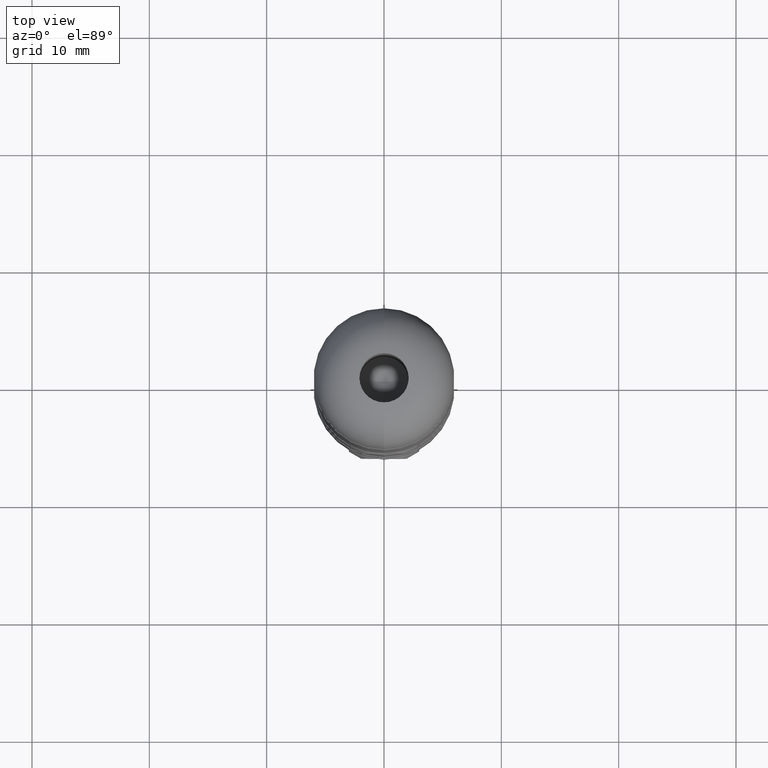
[diagram: clean part render]
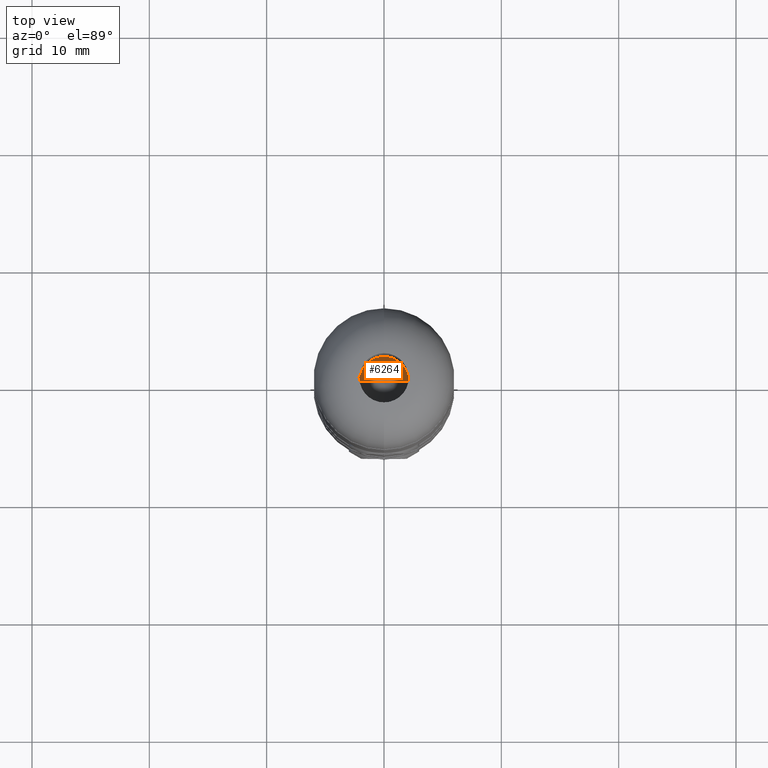
[diagram: same view with one face highlighted and labeled with its STEP entity id]
A machine part, top view. The second image highlights one B-rep face of the part: STEP entity #6264.
In plain terms, the highlighted conical surface has half-angle 59 deg.
Its self-contained STEP definition (entity closure, byte-faithful):
#579 = VECTOR ( 'NONE', #3098, 1000.000000000000000 ) ;
#751 = ORIENTED_EDGE ( 'NONE', *, *, #9415, .F. ) ;
#814 = DIRECTION ( 'NONE',  ( -0.0000000000000000000, -0.0000000000000000000, 1.000000000000000000 ) ) ;
#2072 = CARTESIAN_POINT ( 'NONE',  ( 0.0000000000000000000, 3.708278680638678200E-015, 13.99999999999999800 ) ) ;
#2139 = EDGE_LOOP ( 'NONE', ( #751, #7609, #3180 ) ) ;
#3098 = DIRECTION ( 'NONE',  ( 0.8571673007021112200, 0.0000000000000000000, 0.5150380749100560400 ) ) ;
#3180 = ORIENTED_EDGE ( 'NONE', *, *, #7132, .T. ) ;
#3416 = EDGE_CURVE ( 'NONE', #13108, #16601, #17596, .T. ) ;
#4757 = VERTEX_POINT ( 'NONE', #10073 ) ;
#6264 = ADVANCED_FACE ( 'NONE', ( #10351 ), #6911, .F. ) ;
#6911 = CONICAL_SURFACE ( 'NONE', #12570, 2.099999999999996500, 1.029744258676652300 ) ;
#7132 = EDGE_CURVE ( 'NONE', #16601, #4757, #12051, .T. ) ;
#7157 = CARTESIAN_POINT ( 'NONE',  ( 2.099999999999996500, 3.708278680638678200E-015, 13.99999999999999800 ) ) ;
#7609 = ORIENTED_EDGE ( 'NONE', *, *, #3416, .T. ) ;
#9415 = EDGE_CURVE ( 'NONE', #13108, #4757, #10096, .T. ) ;
#10073 = CARTESIAN_POINT ( 'NONE',  ( -2.099999999999996500, 3.965454508459621800E-015, 13.99999999999999800 ) ) ;
#10096 = LINE ( 'NONE', #10355, #10518 ) ;
#10351 = FACE_OUTER_BOUND ( 'NONE', #2139, .T. ) ;
#10355 = CARTESIAN_POINT ( 'NONE',  ( -2.099999999999996500, 3.965454508459621800E-015, 13.99999999999999800 ) ) ;
#10518 = VECTOR ( 'NONE', #13157, 1000.000000000000000 ) ;
#10581 = CARTESIAN_POINT ( 'NONE',  ( 2.099999999999996500, 3.708278680638678200E-015, 13.99999999999999800 ) ) ;
#11858 = DIRECTION ( 'NONE',  ( 1.000000000000000000, 0.0000000000000000000, 0.0000000000000000000 ) ) ;
#12051 = CIRCLE ( 'NONE', #13390, 2.099999999999996500 ) ;
#12226 = DIRECTION ( 'NONE',  ( 1.000000000000000000, 0.0000000000000000000, 0.0000000000000000000 ) ) ;
#12286 = CARTESIAN_POINT ( 'NONE',  ( 0.0000000000000000000, 3.708278680638678200E-015, 13.99999999999999800 ) ) ;
#12570 = AXIS2_PLACEMENT_3D ( 'NONE', #2072, #814, #11858 ) ;
#13108 = VERTEX_POINT ( 'NONE', #14648 ) ;
#13157 = DIRECTION ( 'NONE',  ( -0.8571673007021112200, 1.049727191138617300E-016, 0.5150380749100560400 ) ) ;
#13390 = AXIS2_PLACEMENT_3D ( 'NONE', #12286, #16247, #12226 ) ;
#14648 = CARTESIAN_POINT ( 'NONE',  ( -4.227923411478366000E-015, 3.708278680638678200E-015, 12.73819270004212000 ) ) ;
#16247 = DIRECTION ( 'NONE',  ( -0.0000000000000000000, -0.0000000000000000000, 1.000000000000000000 ) ) ;
#16601 = VERTEX_POINT ( 'NONE', #10581 ) ;
#17596 = LINE ( 'NONE', #7157, #579 ) ;